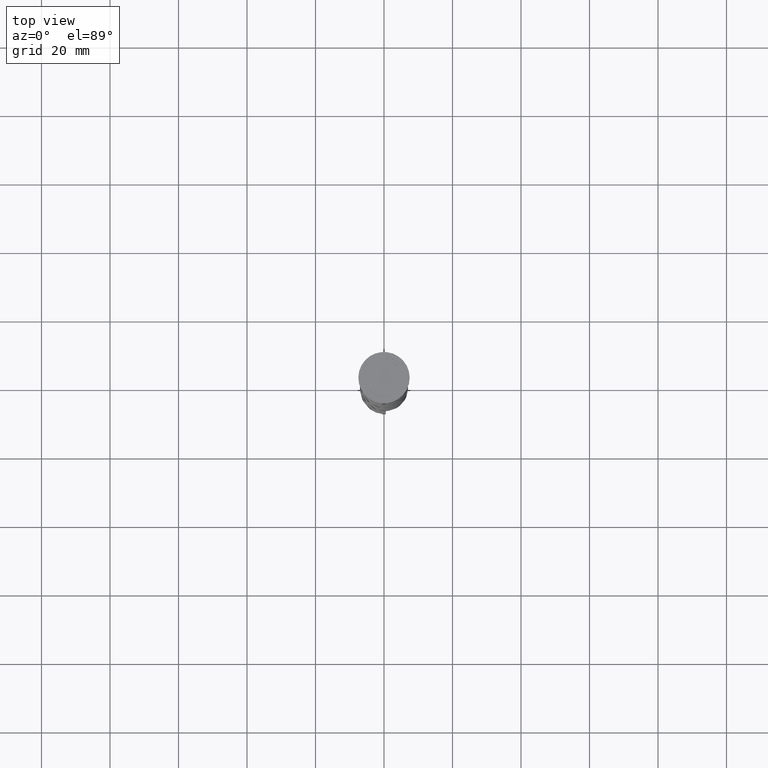
[diagram: clean part render]
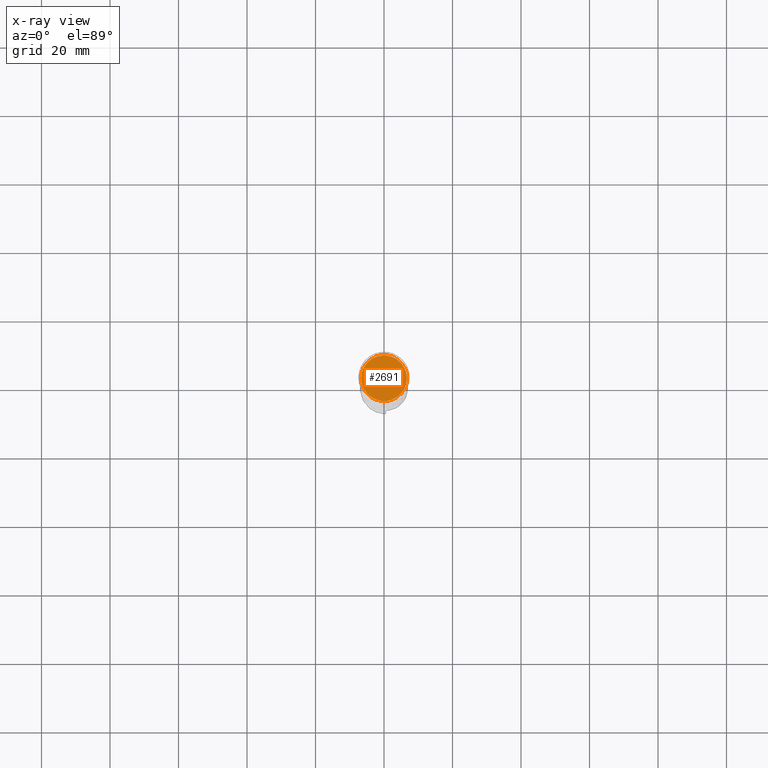
[diagram: x-ray — body ghosted, one internal face saturated and labeled with its STEP entity id]
A machine part, top view, then the same camera in x-ray: the body is ghosted and one INTERNAL B-rep face — a face not visible from any outside direction — is saturated and labeled: STEP entity #2691.
In plain terms, the highlighted planar face has unit normal (0, 0, -1).
Its self-contained STEP definition (entity closure, byte-faithful):
#15 = EDGE_LOOP ( 'NONE', ( #2834, #3186 ) ) ;
#42 = CARTESIAN_POINT ( 'NONE',  ( 0.000000000000000000, 0.000000000000000000, -10.50000000000000178 ) ) ;
#58 = DIRECTION ( 'NONE',  ( -1.000000000000000000, 0.000000000000000000, 0.000000000000000000 ) ) ;
#303 = CARTESIAN_POINT ( 'NONE',  ( 0.000000000000000000, 0.000000000000000000, -10.50000000000000178 ) ) ;
#519 = FACE_OUTER_BOUND ( 'NONE', #15, .T. ) ;
#783 = CIRCLE ( 'NONE', #1031, 6.700000000000001066 ) ;
#849 = PLANE ( 'NONE',  #1603 ) ;
#927 = DIRECTION ( 'NONE',  ( -0.000000000000000000, -0.000000000000000000, 1.000000000000000000 ) ) ;
#930 = DIRECTION ( 'NONE',  ( -1.000000000000000000, 0.000000000000000000, 0.000000000000000000 ) ) ;
#1031 = AXIS2_PLACEMENT_3D ( 'NONE', #42, #2431, #930 ) ;
#1043 = VERTEX_POINT ( 'NONE', #1430 ) ;
#1142 = CARTESIAN_POINT ( 'NONE',  ( 0.000000000000000000, 0.000000000000000000, -10.50000000000000178 ) ) ;
#1407 = EDGE_CURVE ( 'NONE', #1043, #3508, #783, .T. ) ;
#1430 = CARTESIAN_POINT ( 'NONE',  ( 6.700000000000001066, 8.388830574159370862E-16, -10.50000000000000178 ) ) ;
#1552 = EDGE_CURVE ( 'NONE', #3508, #1043, #1913, .T. ) ;
#1603 = AXIS2_PLACEMENT_3D ( 'NONE', #1142, #2648, #3486 ) ;
#1657 = CARTESIAN_POINT ( 'NONE',  ( -6.700000000000001066, 0.000000000000000000, -10.50000000000000178 ) ) ;
#1913 = CIRCLE ( 'NONE', #2740, 6.700000000000001066 ) ;
#2431 = DIRECTION ( 'NONE',  ( -0.000000000000000000, -0.000000000000000000, 1.000000000000000000 ) ) ;
#2648 = DIRECTION ( 'NONE',  ( 0.000000000000000000, 0.000000000000000000, -1.000000000000000000 ) ) ;
#2691 = ADVANCED_FACE ( 'NONE', ( #519 ), #849, .F. ) ;
#2740 = AXIS2_PLACEMENT_3D ( 'NONE', #303, #927, #58 ) ;
#2834 = ORIENTED_EDGE ( 'NONE', *, *, #1552, .T. ) ;
#3186 = ORIENTED_EDGE ( 'NONE', *, *, #1407, .T. ) ;
#3486 = DIRECTION ( 'NONE',  ( -1.000000000000000000, 0.000000000000000000, -0.000000000000000000 ) ) ;
#3508 = VERTEX_POINT ( 'NONE', #1657 ) ;